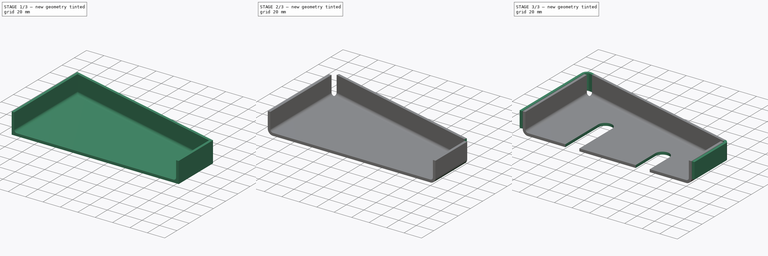
[diagram: build sequence overview — one tinted view per stage of 3, left to right]
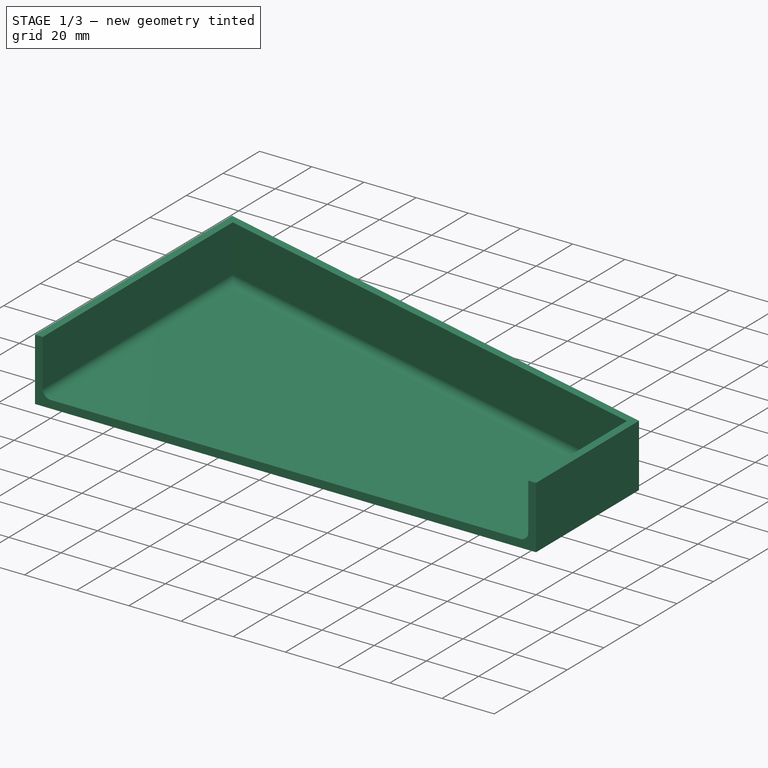
[diagram: stage 1 of 3 — iso view after this stage's code; geometry added in this stage tinted green]
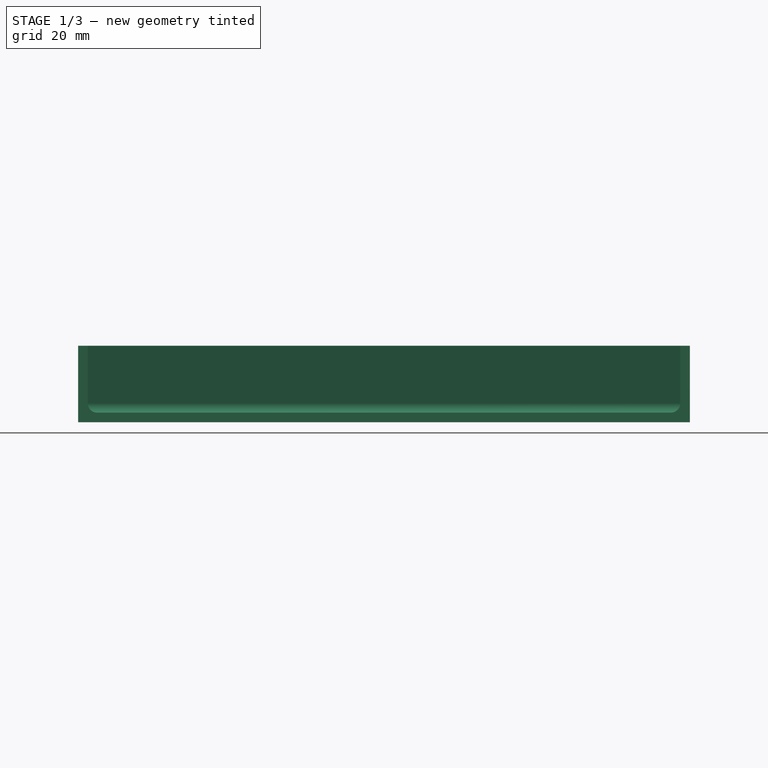
[diagram: stage 1 of 3 — front view after this stage's code; geometry added in this stage tinted green]
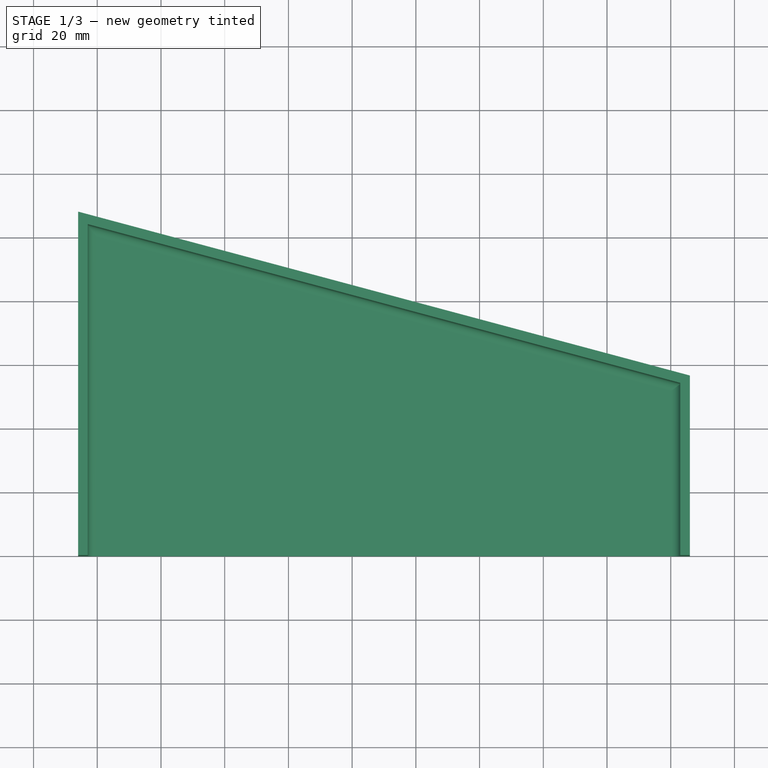
[diagram: stage 1 of 3 — top view after this stage's code; geometry added in this stage tinted green]
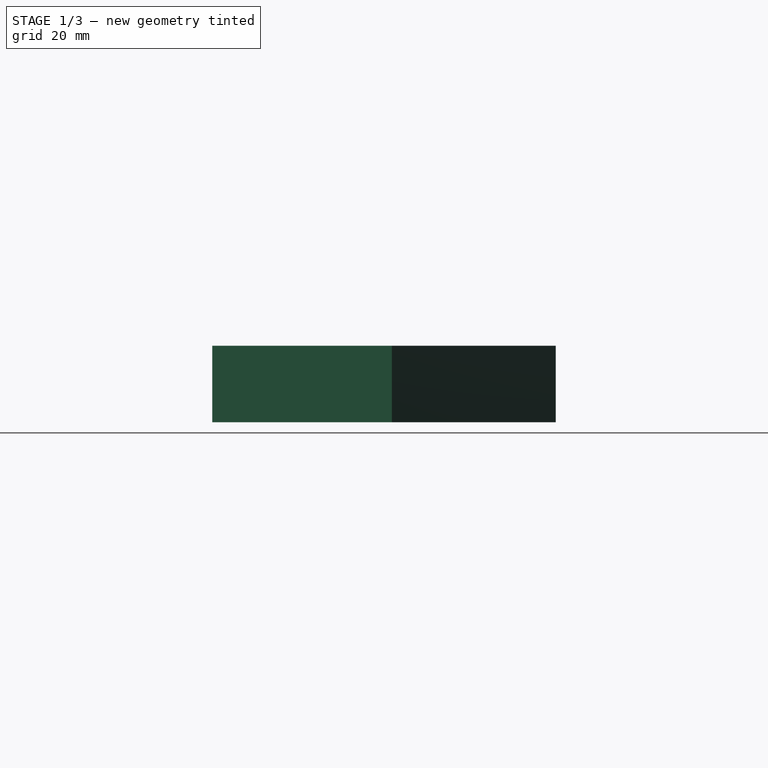
[diagram: stage 1 of 3 — right view after this stage's code; geometry added in this stage tinted green]
FCSTD DOCUMENT  (FreeCAD 1.1R42340 (Git))
Label: 25-SPO-21-SM_TRIANGLE
License: Creative Commons Attribution-NonCommercial-ShareAlike 4.0
LicenseURL: https://creativecommons.org/licenses/by-nc-sa/4.0/
objects: Sketcher::SketchObject×7, PartDesign::Fillet×2, PartDesign::Pocket×2, PartDesign::AdditivePipe×2, App::Point×1, PartDesign::Pad×1, PartDesign::Thickness×1, PartDesign::Body×1, App::TextDocument×1
note: 39 computed .brp shape members not serialized (recipe doc carries the construction recipe); baked Part::Feature solids carry a one-line shape summary decoded from their .brp

FEATURE [App::Point] Origin001  label="Origine"
  Role = Origin
FEATURE [Sketcher::SketchObject] Sketch
  ArcFitTolerance = 1e-06
  AttachmentSupport = -> [Origin]
  ExternalTypes = [0]
  FullyConstrained = true
  MakeInternals = false
  MapMode = 5
  sketch-geometry (8):
    g0: LineSegment [constr] StartX=0 StartY=0 StartZ=0 EndX=0 EndY=100 EndZ=0
    g1: LineSegment [constr] StartX=0 StartY=100 StartZ=0 EndX=180 EndY=51.7691 EndZ=0
    g2: LineSegment [constr] StartX=180 StartY=51.7691 StartZ=0 EndX=180 EndY=0 EndZ=0
    g3: LineSegment [constr] StartX=180 StartY=0 StartZ=0 EndX=0 EndY=0 EndZ=0
    g4: LineSegment StartX=-6 StartY=0 StartZ=0 EndX=186 EndY=0 EndZ=0
    g5: LineSegment StartX=186 StartY=0 StartZ=0 EndX=186 EndY=56.3731 EndZ=0
    g6: LineSegment StartX=186 StartY=56.3731 StartZ=0 EndX=-6 EndY=107.819 EndZ=0
    g7: LineSegment StartX=-6 StartY=107.819 StartZ=0 EndX=-6 EndY=0 EndZ=0
  constraints (23):
    c: Coincident(g-1,g0)
    c: PointOnObject(g0,g-2)
    c: Coincident(g0,g1)
    c: Coincident(g1,g2)
    c: PointOnObject(g2,g-1)
    c: Vertical(g2)
    c: Coincident(g2,g3)
    c: Coincident(g3,g0)
    c: DistanceX(g3,g3) = 180
    c: DistanceY(g0,g0) = 100
    c: Angle(g1,g3) = 0.261799
    c: PointOnObject(g4,g-1)
    c: PointOnObject(g4,g-1)
    c: Coincident(g4,g5)
    c: Vertical(g5)
    c: Coincident(g5,g6)
    c: Coincident(g6,g7)
    c: Coincident(g7,g4)
    c: Vertical(g7)
    c: Distance(g0,g4) = 6
    c: Parallel(g1,g6)
    c: Distance(g2,g4) = 6
    c: Distance(g0,g6) = 6
FEATURE [PartDesign::Pad] Pad
  Direction = (0,0,1)
  Length = 24
  Length2 = 10
  Profile = -> Sketch
  ReferenceAxis = -> Sketch [N_Axis]
  Refine = true
  Suppressed = false
  Type = 0
FEATURE [PartDesign::Thickness] Thickness
  Base = -> Pad [Face6,Face1]
  BaseFeature = -> Pad
  Intersection = false
  Join = 1
  Mode = 0
  Refine = true
  Reversed = true
  SupportTransform = false
  Suppressed = false
  Value = 3
FEATURE [PartDesign::Fillet] Fillet
  Base = -> Thickness [Edge24,Edge21,Edge23]
  BaseFeature = -> Thickness
  Radius = 3
  Refine = true
  SupportTransform = false
  Suppressed = false
  UseAllEdges = false
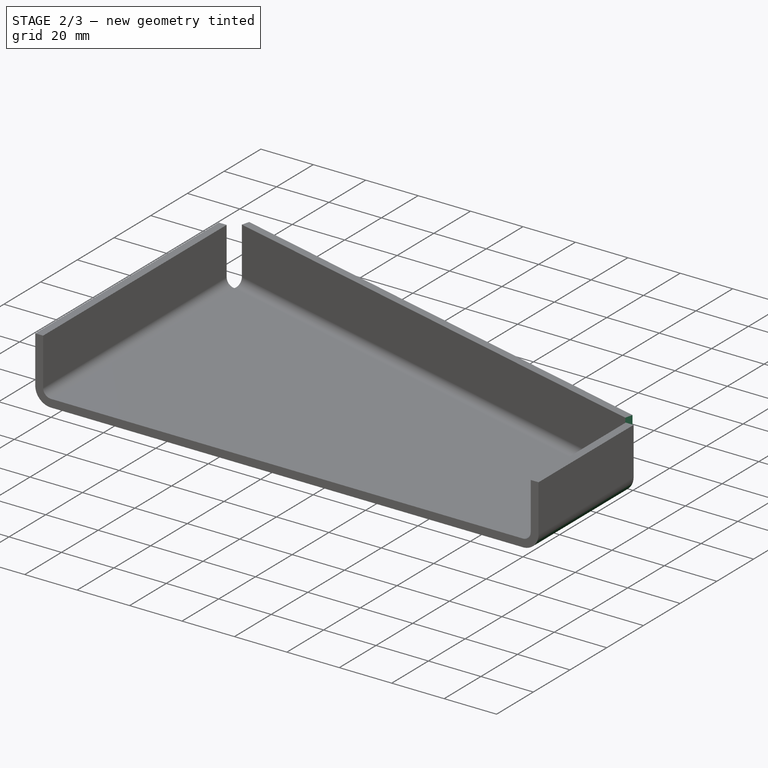
[diagram: stage 2 of 3 — iso view after this stage's code; geometry added in this stage tinted green]
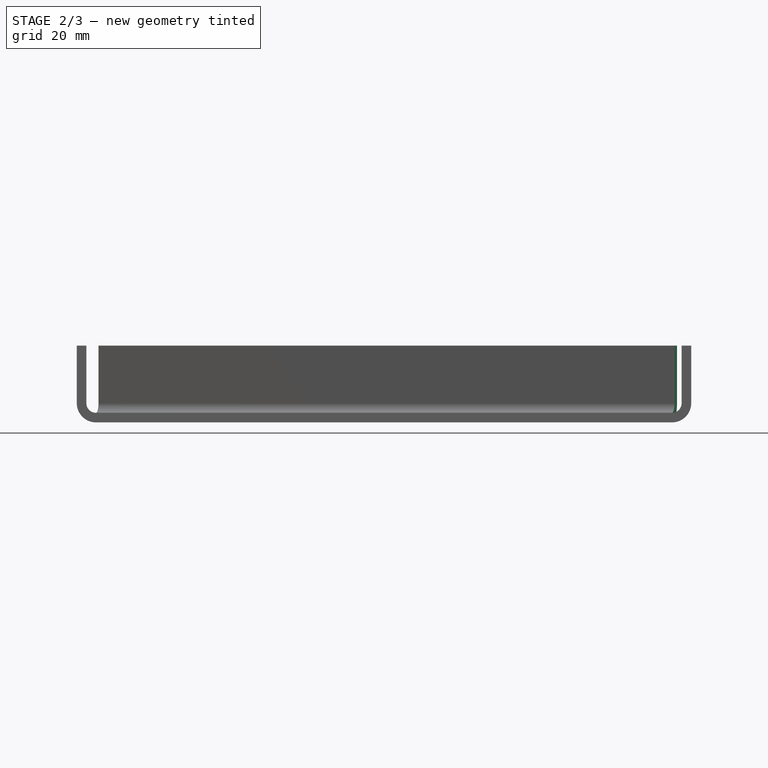
[diagram: stage 2 of 3 — front view after this stage's code; geometry added in this stage tinted green]
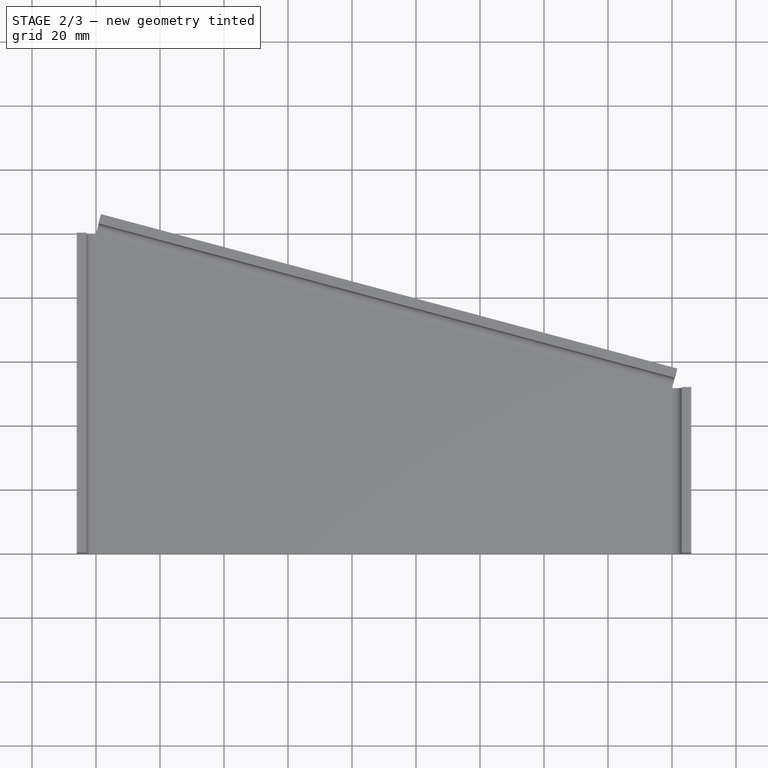
[diagram: stage 2 of 3 — top view after this stage's code; geometry added in this stage tinted green]
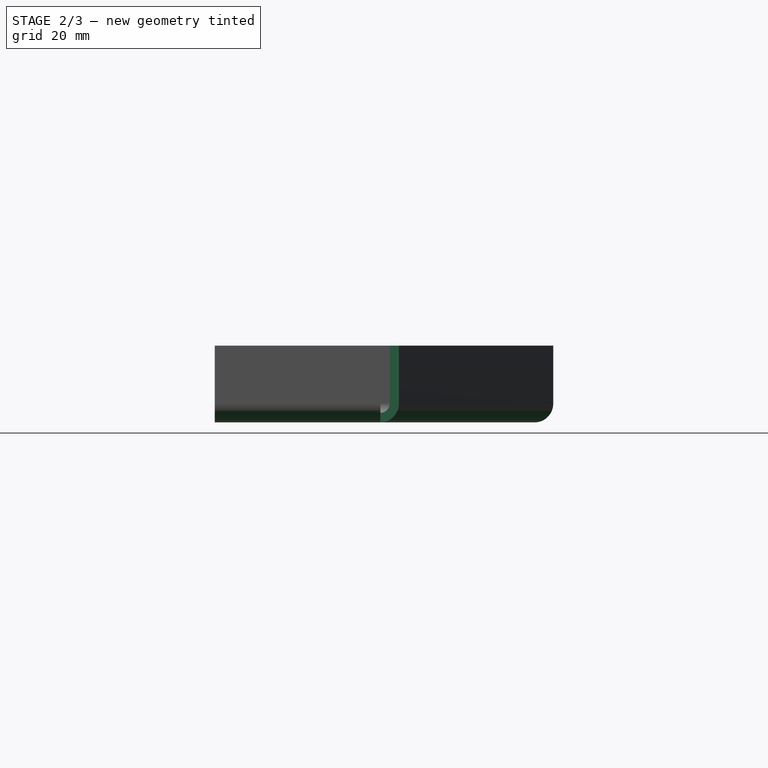
[diagram: stage 2 of 3 — right view after this stage's code; geometry added in this stage tinted green]
FEATURE [PartDesign::Fillet] Fillet001
  Base = -> Fillet [Edge28,Edge24,Edge27]
  BaseFeature = -> Fillet
  Radius = 6
  Refine = true
  SupportTransform = false
  Suppressed = false
  UseAllEdges = false
FEATURE [Sketcher::SketchObject] Sketch001
  ArcFitTolerance = 1e-06
  AttachmentSupport = -> [Fillet001]
  ExternalGeometry = -> [Fillet001,Sketch]
  ExternalTypes = [0,0]
  FullyConstrained = true
  MakeInternals = false
  MapMode = 5
  Placement = pos=(0,0,0) rot=(1,0,0;3.14159rad)
  sketch-geometry (8):
    g0: LineSegment StartX=186 StartY=-51.7691 StartZ=0 EndX=186 EndY=-56.3731 EndZ=0
    g1: LineSegment StartX=186 StartY=-56.3731 StartZ=0 EndX=181.553 EndY=-57.5647 EndZ=0
    g2: LineSegment StartX=181.553 StartY=-57.5647 StartZ=0 EndX=180 EndY=-51.7691 EndZ=0
    g3: LineSegment StartX=180 StartY=-51.7691 StartZ=0 EndX=186 EndY=-51.7691 EndZ=0
    g4: LineSegment StartX=0 StartY=-100 StartZ=0 EndX=1.55291 EndY=-105.796 EndZ=0
    g5: LineSegment StartX=1.55291 StartY=-105.796 StartZ=0 EndX=-6 EndY=-107.819 EndZ=0
    g6: LineSegment StartX=-6 StartY=-107.819 StartZ=0 EndX=-6 EndY=-100 EndZ=0
    g7: LineSegment StartX=-6 StartY=-100 StartZ=0 EndX=0 EndY=-100 EndZ=0
  constraints (20):
    c: Coincident(g0,g1)
    c: Coincident(g1,g2)
    c: Coincident(g2,g3)
    c: Coincident(g3,g0)
    c: Horizontal(g3)
    c: Coincident(g4,g5)
    c: Coincident(g5,g6)
    c: Vertical(g6)
    c: Coincident(g6,g7)
    c: Coincident(g7,g4)
    c: Horizontal(g7)
    c: Vertical(g0)
    c: Coincident(g2,g-3)
    c: Coincident(g0,g-4)
    c: PointOnObject(g1,g-4)
    c: PointOnObject(g4,g-4)
    c: Coincident(g-3,g4)
    c: Coincident(g5,g-4)
    c: Perpendicular(g4,g-4)
    c: Perpendicular(g2,g-4)
FEATURE [PartDesign::Pocket] Pocket
  BaseFeature = -> Fillet001
  Direction = (0,0,1)
  Length = 5
  Length2 = 5
  Profile = -> Sketch001
  ReferenceAxis = -> Sketch001 [N_Axis]
  Refine = true
  Suppressed = false
  Type = 1
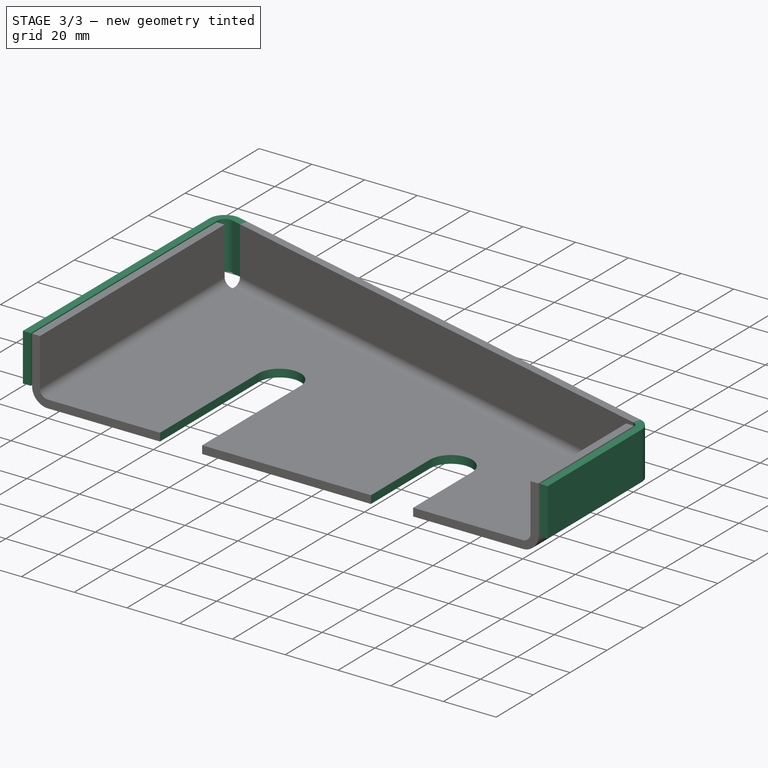
[diagram: stage 3 of 3 — iso view after this stage's code; geometry added in this stage tinted green]
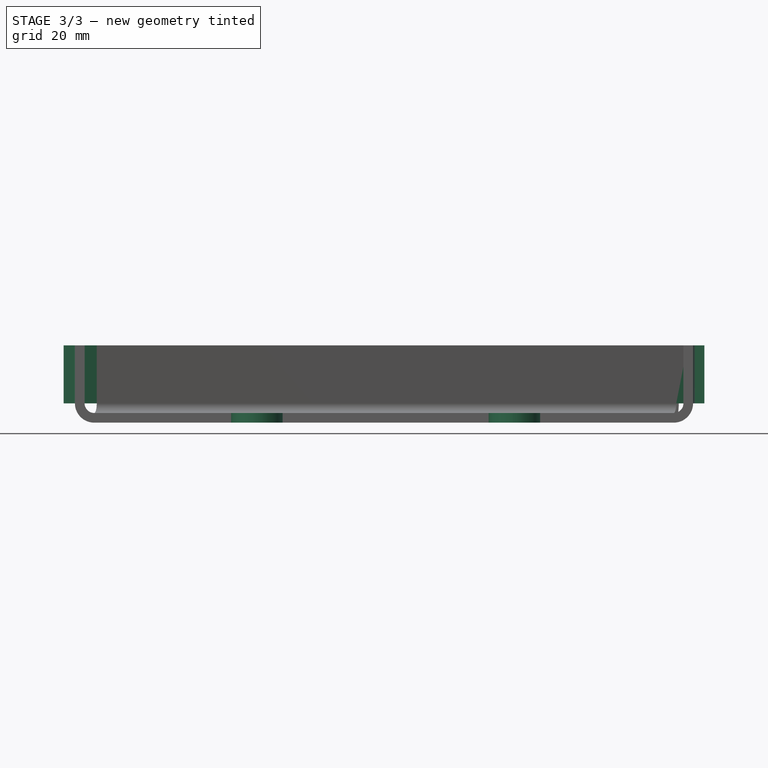
[diagram: stage 3 of 3 — front view after this stage's code; geometry added in this stage tinted green]
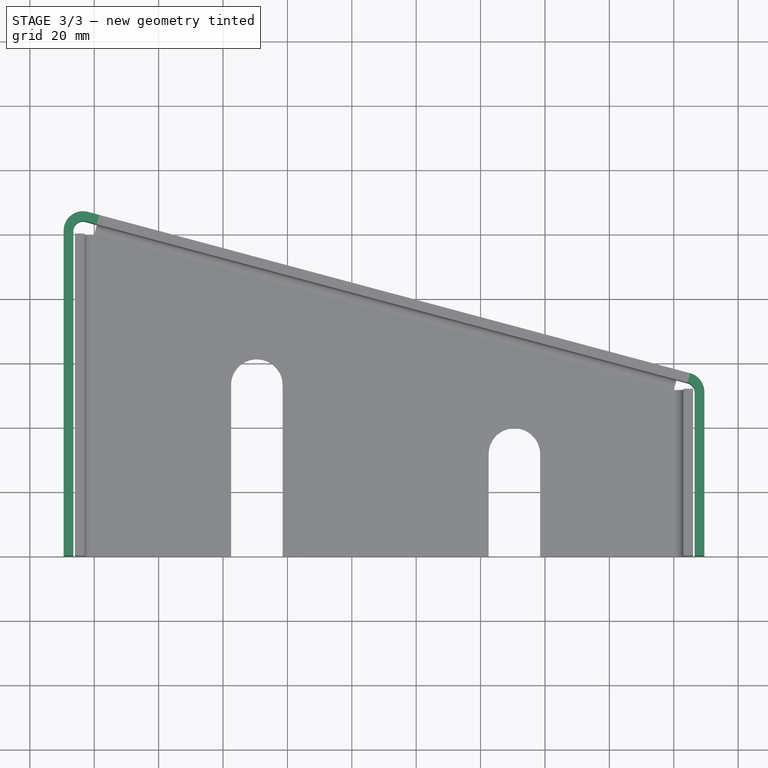
[diagram: stage 3 of 3 — top view after this stage's code; geometry added in this stage tinted green]
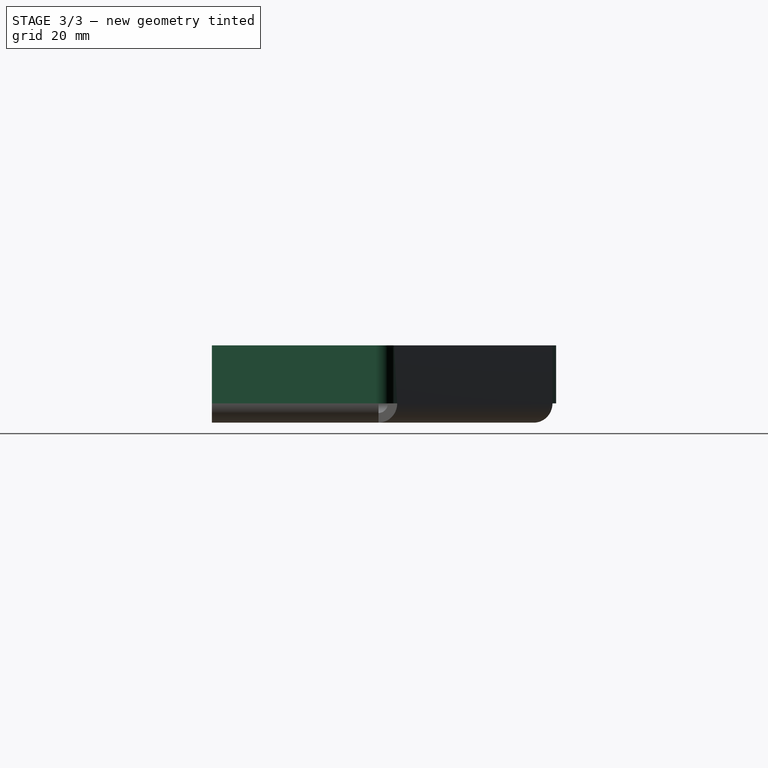
[diagram: stage 3 of 3 — right view after this stage's code; geometry added in this stage tinted green]
FEATURE [Sketcher::SketchObject] Sketch002
  ArcFitTolerance = 1e-06
  AttachmentSupport = -> [Pocket]
  ExternalGeometry = -> [Pocket]
  ExternalTypes = [0,0]
  FullyConstrained = true
  MakeInternals = false
  MapMode = 5
  Placement = pos=(0,0,24) rot=(0,0,1;0rad)
  sketch-geometry (3):
    g0: LineSegment StartX=0.776457 StartY=102.898 StartZ=0 EndX=-2.72354 EndY=103.836 EndZ=0
    g1: ArcOfCircle CenterX=-3.5 CenterY=100.938 CenterZ=0 NormalX=0 NormalY=0 NormalZ=1 AngleXU=0 Radius=3 StartAngle=1.309 EndAngle=3.14159
    g2: LineSegment StartX=-6.5 StartY=100.938 StartZ=0 EndX=-6.5 EndY=0 EndZ=0
  constraints (8):
    c: Tangent(g0,g1) = -1.5708
    c: Tangent(g1,g2) = -1.5708
    c: Radius(g1) = 3
    c: Vertical(g2)
    c: PointOnObject(g2,g-1)
    c: Coincident(g0,g-3)
    c: PointOnObject(g0,g-3)
    c: Distance(g1,g-4) = 0.5
FEATURE [Sketcher::SketchObject] Sketch003
  ArcFitTolerance = 1e-06
  AttachmentSupport = -> [Pocket]
  ExternalGeometry = -> [Pocket]
  ExternalTypes = [0,0]
  FullyConstrained = true
  MakeInternals = false
  MapMode = 5
  Placement = pos=(-25,6.69873,0) rot=(-0.476905,0.621515,0.621515;4.0316rad)
  sketch-geometry (3):
    g0: LineSegment StartX=-102.593 StartY=24 StartZ=0 EndX=-102.593 EndY=6 EndZ=0
    g1: LineSegment StartX=-102.593 StartY=6 StartZ=0 EndX=-99.5926 EndY=6 EndZ=0
    g2: LineSegment StartX=-99.5926 StartY=6 StartZ=0 EndX=-99.5926 EndY=24 EndZ=0
  constraints (8):
    c: Coincident(g0,g1)
    c: Horizontal(g1)
    c: Coincident(g1,g2)
    c: DistanceY(g0,g0) = 18
    c: Vertical(g2)
    c: Vertical(g0)
    c: Coincident(g0,g-3)
    c: Coincident(g2,g-3)
FEATURE [PartDesign::AdditivePipe] AdditivePipe
  AuxiliaryCurvilinear = true
  AuxiliarySpineTangent = false
  BaseFeature = -> Pocket
  Binormal = (0,0,0)
  Mode = 0
  Profile = -> Sketch003
  Refine = true
  Spine = -> Sketch002
  SpineTangent = false
  Suppressed = false
  Transformation = 0
  Transition = 0
FEATURE [Sketcher::SketchObject] Sketch005  label="Profil"
  ArcFitTolerance = 1e-06
  AttachmentSupport = -> [AdditivePipe]
  ExternalGeometry = -> [AdditivePipe]
  ExternalTypes = [0]
  FullyConstrained = true
  MakeInternals = false
  MapMode = 5
  Placement = pos=(155,-41.5321,0) rot=(0.677661,0.519988,0.519988;1.95044rad)
  sketch-geometry (3):
    g0: LineSegment StartX=102.593 StartY=24 StartZ=0 EndX=102.593 EndY=6 EndZ=0
    g1: LineSegment StartX=102.593 StartY=6 StartZ=0 EndX=99.5926 EndY=6 EndZ=0
    g2: LineSegment StartX=99.5926 StartY=6 StartZ=0 EndX=99.5926 EndY=24 EndZ=0
  constraints (8):
    c: Coincident(g0,g1)
    c: Coincident(g1,g2)
    c: Vertical(g0)
    c: Vertical(g2)
    c: Horizontal(g1)
    c: DistanceY(g0,g0) = 18
    c: Coincident(g0,g-3)
    c: Coincident(g2,g-3)
FEATURE [Sketcher::SketchObject] Sketch006  label="Right Path"
  ArcFitTolerance = 1e-06
  AttachmentSupport = -> [AdditivePipe]
  ExternalGeometry = -> [AdditivePipe]
  ExternalTypes = [0,0]
  FullyConstrained = true
  MakeInternals = false
  MapMode = 5
  Placement = pos=(0,0,24) rot=(0,0,1;0rad)
  sketch-geometry (3):
    g0: LineSegment StartX=186.5 StartY=0 StartZ=0 EndX=186.5 EndY=50.8313 EndZ=0
    g1: LineSegment StartX=180.776 StartY=54.6669 StartZ=0 EndX=184.276 EndY=53.7291 EndZ=0
    g2: ArcOfCircle CenterX=183.5 CenterY=50.8313 CenterZ=0 NormalX=0 NormalY=0 NormalZ=1 AngleXU=0 Radius=3 StartAngle=-9e-16 EndAngle=1.309
  constraints (8):
    c: Vertical(g0)
    c: PointOnObject(g0,g-1)
    c: Tangent(g2,g0) = -1.5708
    c: Radius(g2) = 3
    c: Tangent(g2,g1) = 1.5708
    c: Coincident(g1,g-4)
    c: PointOnObject(g1,g-4)
    c: Distance(g-3,g0) = 0.5
FEATURE [PartDesign::AdditivePipe] AdditivePipe001
  AuxiliaryCurvilinear = true
  AuxiliarySpineTangent = false
  BaseFeature = -> AdditivePipe
  Binormal = (0,0,0)
  Mode = 0
  Profile = -> Sketch005
  Refine = true
  Spine = -> Sketch006
  SpineTangent = false
  Suppressed = false
  Transformation = 0
  Transition = 0
FEATURE [Sketcher::SketchObject] Sketch004
  ArcFitTolerance = 1e-06
  AttachmentSupport = -> [Origin]
  ExternalGeometry = -> [AdditivePipe001]
  ExternalTypes = [0,0]
  FullyConstrained = true
  MakeInternals = false
  MapMode = 5
  sketch-geometry (9):
    g0: ArcOfCircle CenterX=50.5 CenterY=0 CenterZ=0 NormalX=0 NormalY=0 NormalZ=1 AngleXU=0 Radius=8 StartAngle=3.14159 EndAngle=6.28319
    g1: ArcOfCircle CenterX=50.5 CenterY=53.3397 CenterZ=0 NormalX=0 NormalY=0 NormalZ=1 AngleXU=0 Radius=8 StartAngle=0 EndAngle=3.14159
    g2: LineSegment StartX=42.5 StartY=-2.6e-15 StartZ=0 EndX=42.5 EndY=53.3397 EndZ=0
    g3: LineSegment StartX=58.5 StartY=-2e-15 StartZ=0 EndX=58.5 EndY=53.3397 EndZ=0
    g4: ArcOfCircle CenterX=130.5 CenterY=31.9038 CenterZ=0 NormalX=0 NormalY=0 NormalZ=1 AngleXU=0 Radius=8 StartAngle=2e-16 EndAngle=3.14159
    g5: ArcOfCircle CenterX=130.5 CenterY=0 CenterZ=0 NormalX=0 NormalY=0 NormalZ=1 AngleXU=0 Radius=8 StartAngle=3.14159 EndAngle=6.28319
    g6: LineSegment StartX=138.5 StartY=31.9038 StartZ=0 EndX=138.5 EndY=-3.6e-15 EndZ=0
    g7: LineSegment StartX=122.5 StartY=31.9038 StartZ=0 EndX=122.5 EndY=0 EndZ=0
    g8: LineSegment [constr] StartX=52.5706 StartY=61.0671 StartZ=0 EndX=132.571 EndY=39.6312 EndZ=0
  constraints (22):
    c: Tangent(g0,g2) = 1.5708
    c: Tangent(g0,g3) = -1.5708
    c: Tangent(g1,g2) = 1.5708
    c: Tangent(g1,g3) = -1.5708
    c: Vertical(g2)
    c: Tangent(g4,g6) = 1.5708
    c: Tangent(g4,g7) = -1.5708
    c: Tangent(g5,g6) = 1.5708
    c: Tangent(g5,g7) = -1.5708
    c: Equal(g4,g5)
    c: Vertical(g7)
    c: Radius(g1) = 8
    c: DistanceX(g1,g5) = 80
    c: Vertical(g3)
    c: Equal(g1,g4)
    c: Tangent(g8,g4) = 1.5708
    c: Tangent(g8,g1) = 1.5708
    c: PointOnObject(g0,g-1)
    c: PointOnObject(g5,g-1)
    c: Parallel(g8,g-3)
    c: Distance(g8,g-3) = 30
    c: Distance(g0,g-4) = 60
FEATURE [PartDesign::Pocket] Pocket001
  BaseFeature = -> AdditivePipe001
  Direction = (0,0,-1)
  Length = 5
  Length2 = 5
  Midplane = true
  Profile = -> Sketch004
  ReferenceAxis = -> Sketch004 [N_Axis]
  Refine = true
  Suppressed = false
  Type = 1
FEATURE [PartDesign::Body] Body
  AllowCompound = true
  Group = -> [Sketch,Pad,Thickness,Fillet,Fillet001,Sketch001,Pocket,Sketch002,Sketch003,AdditivePipe,Sketch004,Sketch005,Sketch006,AdditivePipe001,Pocket001]
  Origin = -> Origin
  Tip = -> Pocket001
FEATURE [App::TextDocument] Text_document  label="README"
  Text = https://www.youtube.com/watch?v=VUZSRdB0SIk\n\n7800 kg/m3\n\n554,3g GOOOOOOD!\n\nSo hard to get it right
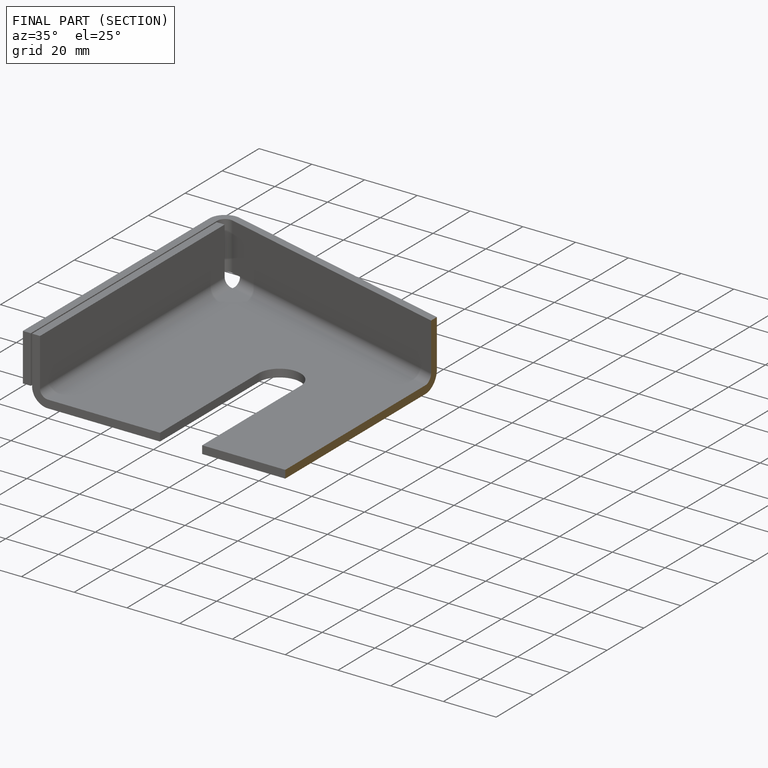
[diagram: finished part — half-section view (interior)]
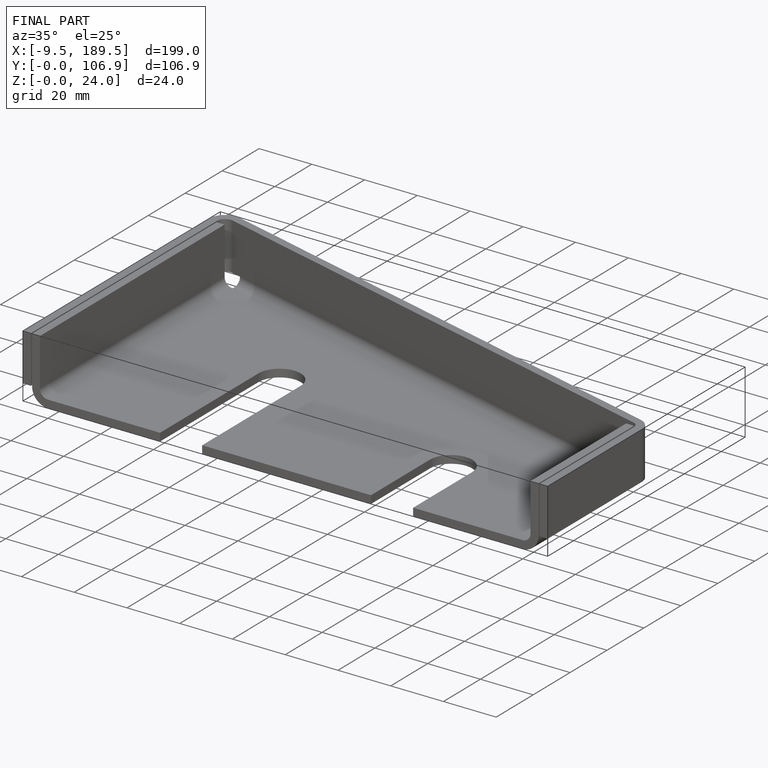
[diagram: finished part — iso view with bounding-box wireframe]
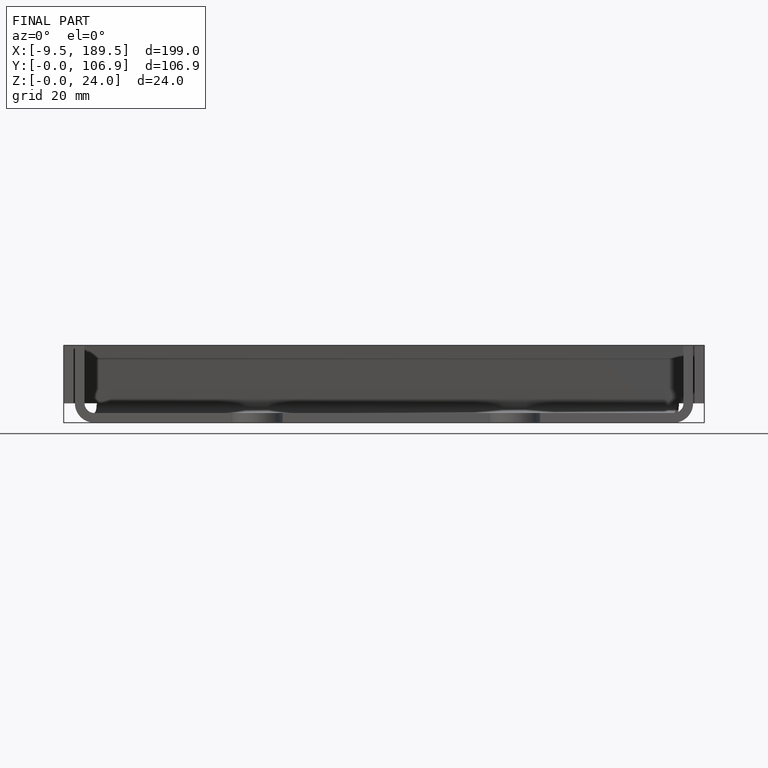
[diagram: finished part — front view with bounding-box wireframe]
